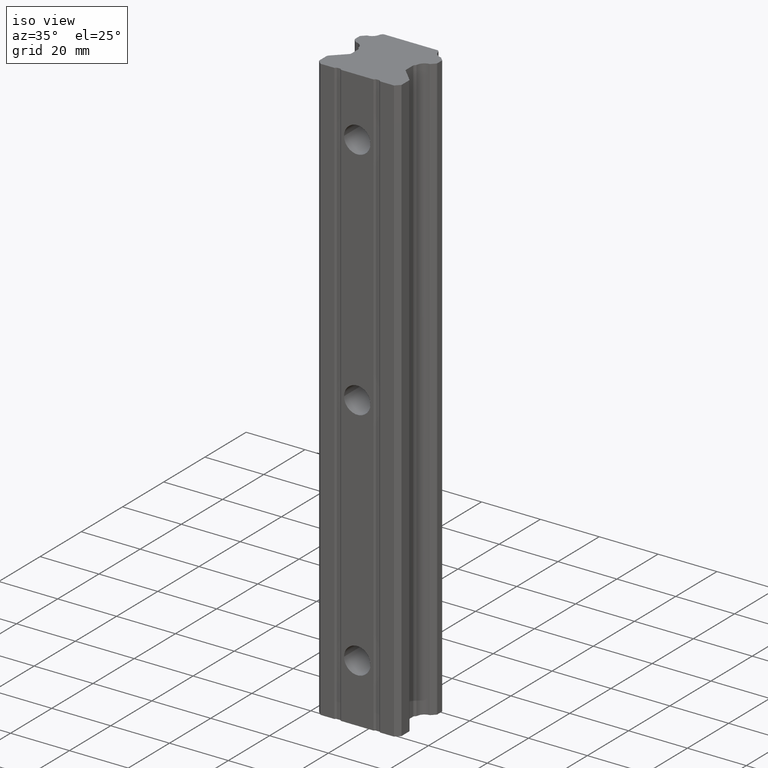
[diagram: clean part render]
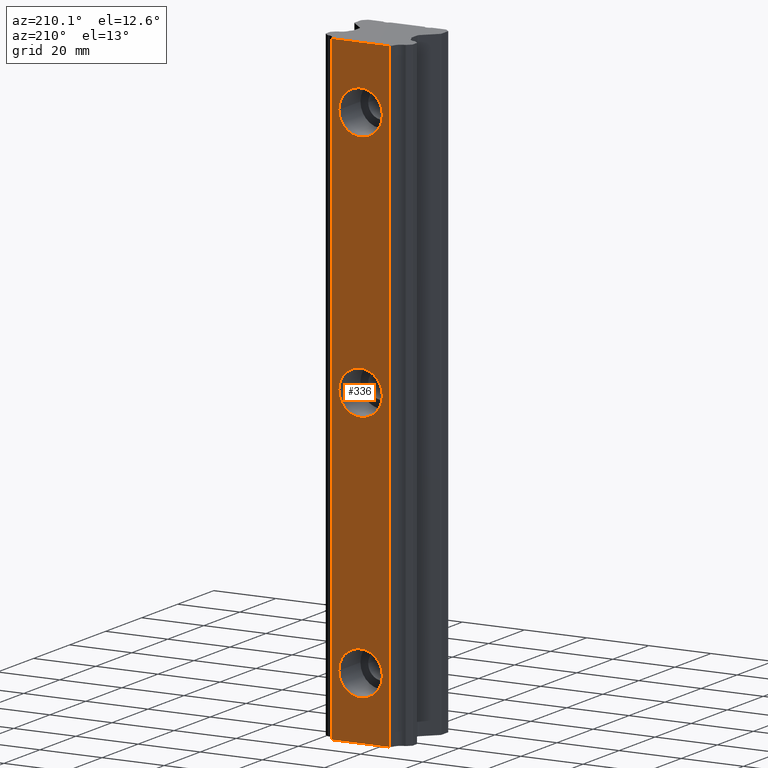
[diagram: tour spotlight — one face highlighted and labeled with its STEP entity id]
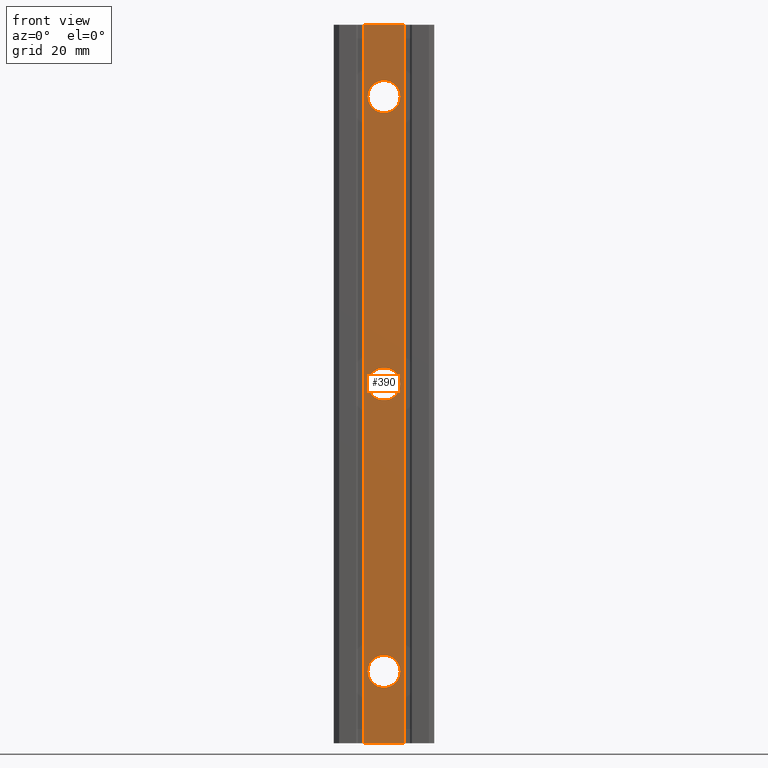
[diagram: tour spotlight — one face highlighted and labeled with its STEP entity id]
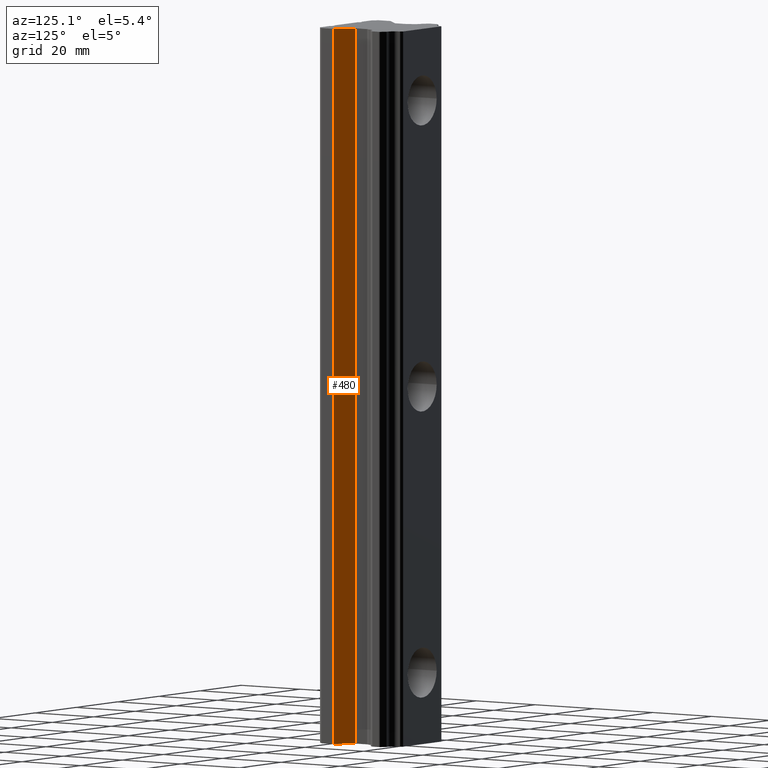
[diagram: tour spotlight — one face highlighted and labeled with its STEP entity id]
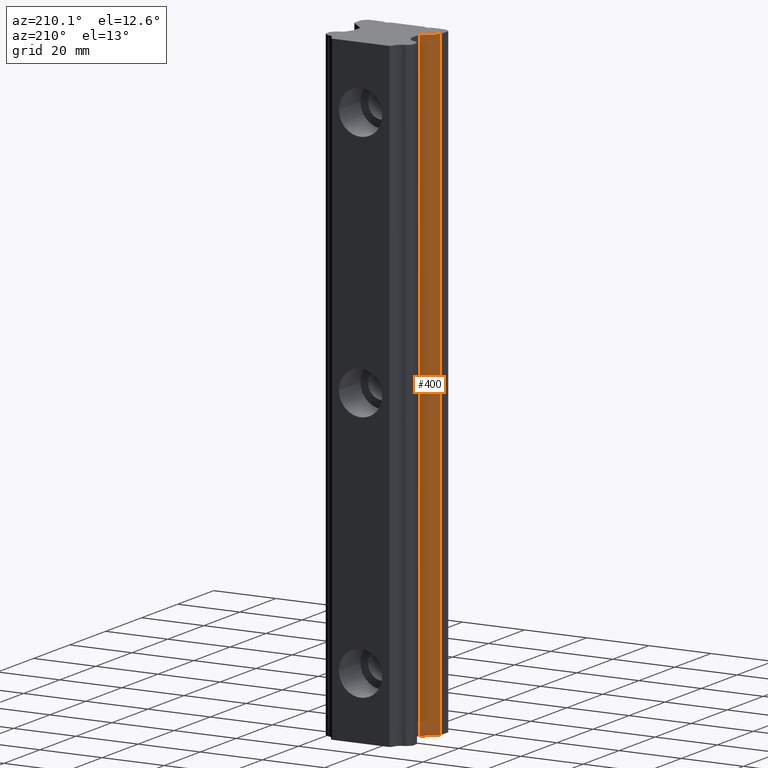
[diagram: tour spotlight — one face highlighted and labeled with its STEP entity id]
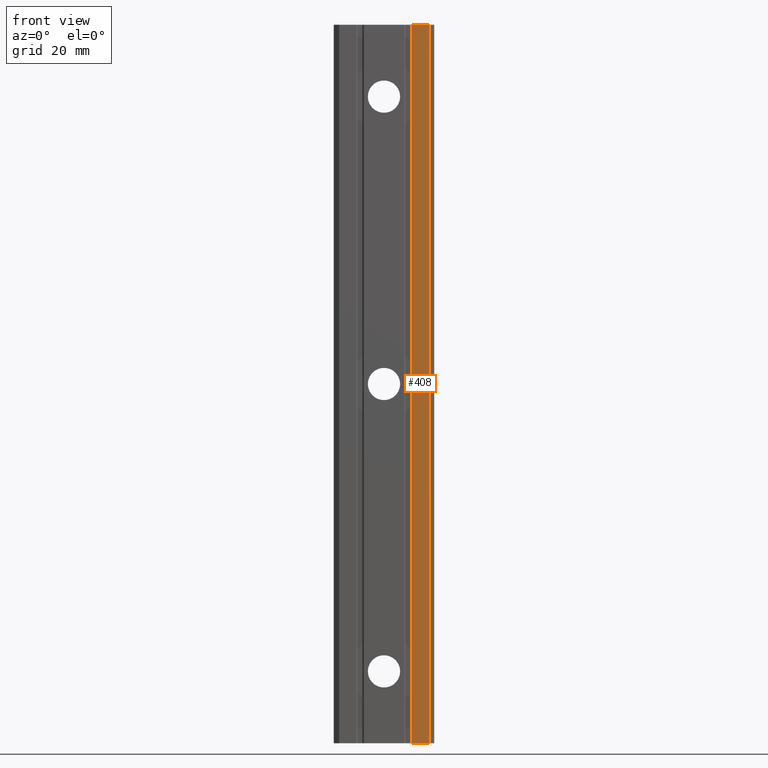
[diagram: tour spotlight — one face highlighted and labeled with its STEP entity id]
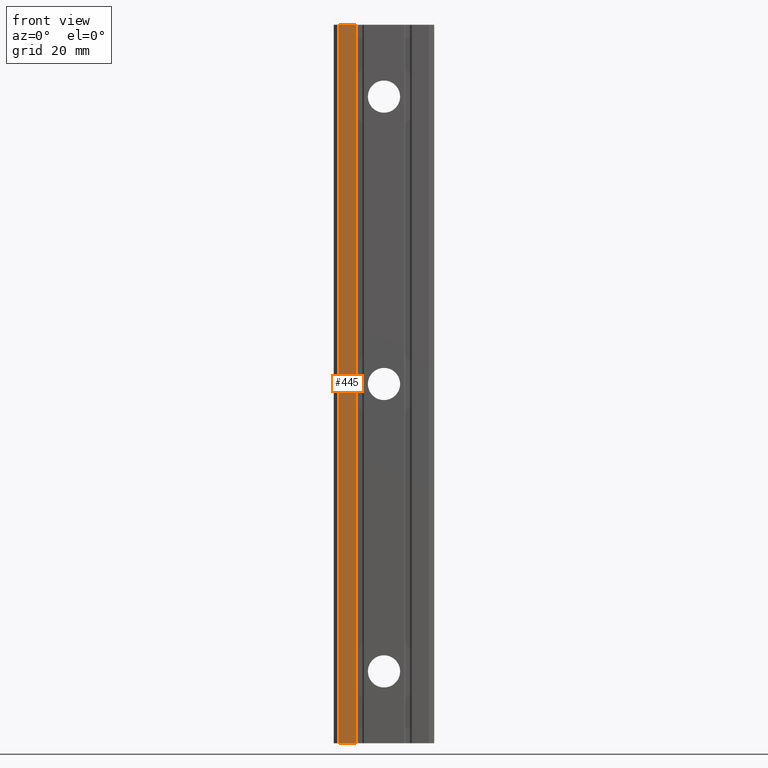
[diagram: tour spotlight — one face highlighted and labeled with its STEP entity id]
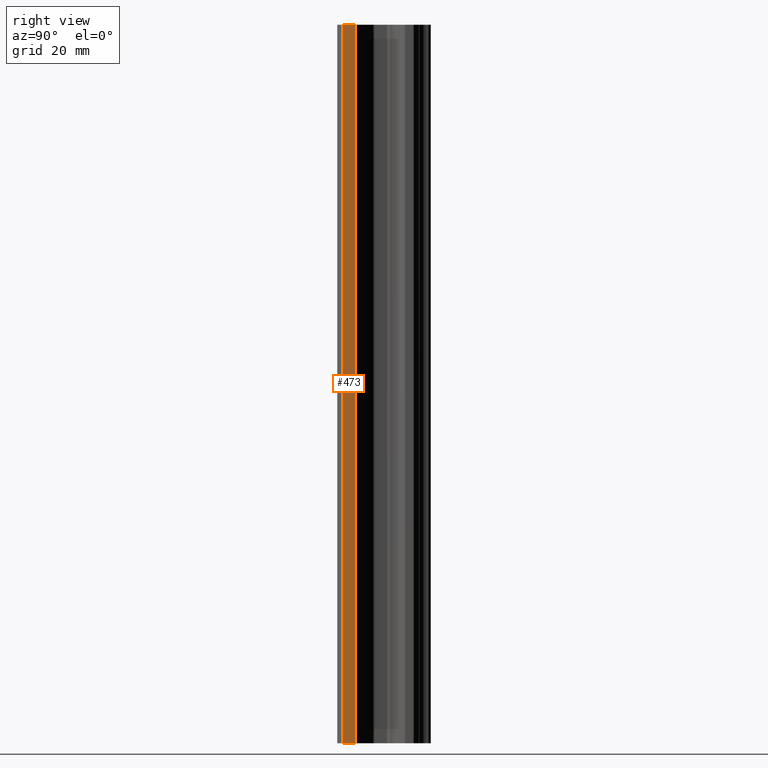
[diagram: tour spotlight — one face highlighted and labeled with its STEP entity id]
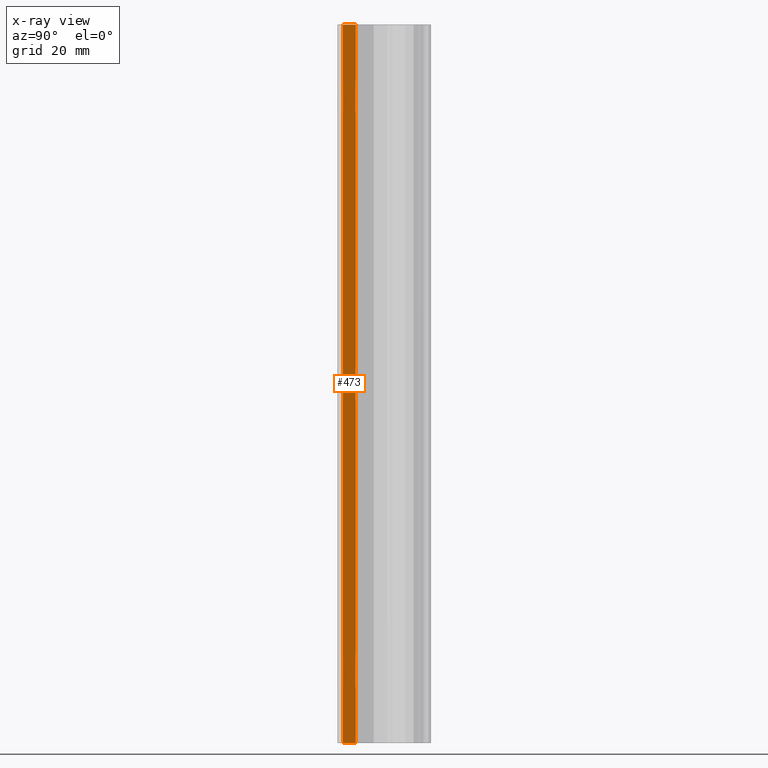
[diagram: x-ray of the same camera — body ghosted, this tour face saturated]
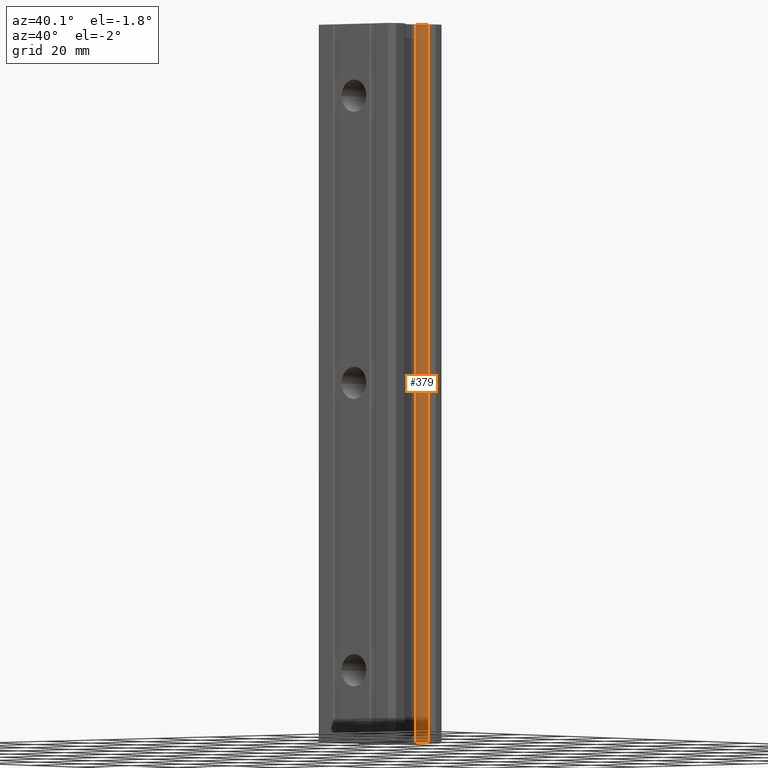
[diagram: tour spotlight — one face highlighted and labeled with its STEP entity id]
A machine part: a face-by-face anatomy tour. The part has 67 B-rep faces; the first image is the clean iso view, then the 8 largest visible faces are spotlighted one at a time (largest first), each with its STEP entity span.

Face 1 — auxiliary view, entity #336. In plain terms, the highlighted planar face has unit normal (-0, 1, 0).
Definition (entity closure, byte-faithful):
#92 = VERTEX_POINT ( 'NONE', #623 ) ;
#93 = VERTEX_POINT ( 'NONE', #622 ) ;
#96 = EDGE_CURVE ( 'NONE', #93, #92, #621, .T. ) ;
#220 = EDGE_CURVE ( 'NONE', #222, #225, #881, .T. ) ;
#222 = VERTEX_POINT ( 'NONE', #876 ) ;
#225 = VERTEX_POINT ( 'NONE', #938 ) ;
#243 = VERTEX_POINT ( 'NONE', #961 ) ;
#245 = VERTEX_POINT ( 'NONE', #960 ) ;
#248 = EDGE_CURVE ( 'NONE', #243, #245, #959, .T. ) ;
#316 = EDGE_CURVE ( 'NONE', #2016, #1923, #1030, .T. ) ;
#326 = EDGE_CURVE ( 'NONE', #92, #93, #1019, .T. ) ;
#332 = ORIENTED_EDGE ( 'NONE', *, *, #248, .T. ) ;
#335 = EDGE_LOOP ( 'NONE', ( #332, #369 ) ) ;
#336 = ADVANCED_FACE ( 'NONE', ( #1013, #1008, #1007, #1006 ), #1005, .T. ) ;
#337 = EDGE_CURVE ( 'NONE', #245, #243, #1064, .T. ) ;
#343 = EDGE_CURVE ( 'NONE', #225, #222, #1059, .T. ) ;
#347 = ORIENTED_EDGE ( 'NONE', *, *, #316, .T. ) ;
#348 = ORIENTED_EDGE ( 'NONE', *, *, #1976, .T. ) ;
#349 = ORIENTED_EDGE ( 'NONE', *, *, #1984, .T. ) ;
#350 = ORIENTED_EDGE ( 'NONE', *, *, #2028, .T. ) ;
#351 = EDGE_LOOP ( 'NONE', ( #353, #354 ) ) ;
#352 = EDGE_LOOP ( 'NONE', ( #350, #347, #348, #349 ) ) ;
#353 = ORIENTED_EDGE ( 'NONE', *, *, #96, .T. ) ;
#354 = ORIENTED_EDGE ( 'NONE', *, *, #326, .T. ) ;
#355 = ORIENTED_EDGE ( 'NONE', *, *, #343, .T. ) ;
#356 = EDGE_LOOP ( 'NONE', ( #357, #355 ) ) ;
#357 = ORIENTED_EDGE ( 'NONE', *, *, #220, .T. ) ;
#369 = ORIENTED_EDGE ( 'NONE', *, *, #337, .T. ) ;
#621 = CIRCLE ( 'NONE', #684, 7.000000000000000000 ) ;
#622 = CARTESIAN_POINT ( 'NONE',  ( -7.000000000000000000, -8.598904206424001400E-014, 80.00000000000000000 ) ) ;
#623 = CARTESIAN_POINT ( 'NONE',  ( 7.000000000000000000, 8.598904206424001400E-014, 80.00000000000000000 ) ) ;
#681 = DIRECTION ( 'NONE',  ( -1.000000000000000000, -1.228414886632000200E-014, 0.0000000000000000000 ) ) ;
#682 = DIRECTION ( 'NONE',  ( 1.228414886632000000E-014, -1.000000000000000000, 0.0000000000000000000 ) ) ;
#683 = CARTESIAN_POINT ( 'NONE',  ( 0.0000000000000000000, 0.0000000000000000000, 80.00000000000000000 ) ) ;
#684 = AXIS2_PLACEMENT_3D ( 'NONE', #683, #682, #681 ) ;
#876 = CARTESIAN_POINT ( 'NONE',  ( -7.000000000000000000, -8.598904206424001400E-014, 0.0000000000000000000 ) ) ;
#877 = DIRECTION ( 'NONE',  ( -1.000000000000000000, -1.228414886632000200E-014, 0.0000000000000000000 ) ) ;
#878 = DIRECTION ( 'NONE',  ( 1.228414886632000000E-014, -1.000000000000000000, 0.0000000000000000000 ) ) ;
#879 = CARTESIAN_POINT ( 'NONE',  ( 0.0000000000000000000, 0.0000000000000000000, 0.0000000000000000000 ) ) ;
#880 = AXIS2_PLACEMENT_3D ( 'NONE', #879, #878, #877 ) ;
#881 = CIRCLE ( 'NONE', #880, 7.000000000000000000 ) ;
#938 = CARTESIAN_POINT ( 'NONE',  ( 7.000000000000000000, 8.598904206424001400E-014, 8.572527594031473200E-016 ) ) ;
#955 = DIRECTION ( 'NONE',  ( -1.000000000000000000, -1.228414886632000200E-014, 0.0000000000000000000 ) ) ;
#956 = DIRECTION ( 'NONE',  ( 1.228414886632000000E-014, -1.000000000000000000, 0.0000000000000000000 ) ) ;
#957 = CARTESIAN_POINT ( 'NONE',  ( 0.0000000000000000000, 0.0000000000000000000, -80.00000000000000000 ) ) ;
#958 = AXIS2_PLACEMENT_3D ( 'NONE', #957, #956, #955 ) ;
#959 = CIRCLE ( 'NONE', #958, 7.000000000000000000 ) ;
#960 = CARTESIAN_POINT ( 'NONE',  ( 7.000000000000000000, 8.598904206424001400E-014, -80.00000000000000000 ) ) ;
#961 = CARTESIAN_POINT ( 'NONE',  ( -7.000000000000000000, -8.598904206424001400E-014, -80.00000000000000000 ) ) ;
#1001 = DIRECTION ( 'NONE',  ( -1.000000000000000000, -1.228414886632000000E-014, 0.0000000000000000000 ) ) ;
#1002 = DIRECTION ( 'NONE',  ( -1.228414886632000000E-014, 1.000000000000000000, 0.0000000000000000000 ) ) ;
#1003 = CARTESIAN_POINT ( 'NONE',  ( 9.255830520887002400, 1.137000000000000100E-013, -100.0000000000000000 ) ) ;
#1004 = AXIS2_PLACEMENT_3D ( 'NONE', #1003, #1002, #1001 ) ;
#1005 = PLANE ( 'NONE',  #1004 ) ;
#1006 = FACE_OUTER_BOUND ( 'NONE', #352, .T. ) ;
#1007 = FACE_BOUND ( 'NONE', #351, .T. ) ;
#1008 = FACE_BOUND ( 'NONE', #356, .T. ) ;
#1013 = FACE_BOUND ( 'NONE', #335, .T. ) ;
#1016 = DIRECTION ( 'NONE',  ( -1.000000000000000000, -1.228414886632000200E-014, 0.0000000000000000000 ) ) ;
#1017 = DIRECTION ( 'NONE',  ( 1.228414886632000000E-014, -1.000000000000000000, 0.0000000000000000000 ) ) ;
#1018 = AXIS2_PLACEMENT_3D ( 'NONE', #1025, #1017, #1016 ) ;
#1019 = CIRCLE ( 'NONE', #1018, 7.000000000000000000 ) ;
#1025 = CARTESIAN_POINT ( 'NONE',  ( 0.0000000000000000000, 0.0000000000000000000, 80.00000000000000000 ) ) ;
#1027 = DIRECTION ( 'NONE',  ( -1.000000000000000000, -1.228414886632000000E-014, 0.0000000000000000000 ) ) ;
#1028 = VECTOR ( 'NONE', #1027, 1000.000000000000000 ) ;
#1029 = CARTESIAN_POINT ( 'NONE',  ( 9.255830520887002400, 1.137000000000000100E-013, -100.0000000000000000 ) ) ;
#1030 = LINE ( 'NONE', #1029, #1028 ) ;
#1055 = DIRECTION ( 'NONE',  ( -1.000000000000000000, -1.228414886632000200E-014, 0.0000000000000000000 ) ) ;
#1056 = DIRECTION ( 'NONE',  ( 1.228414886632000000E-014, -1.000000000000000000, 0.0000000000000000000 ) ) ;
#1057 = CARTESIAN_POINT ( 'NONE',  ( 0.0000000000000000000, 0.0000000000000000000, 0.0000000000000000000 ) ) ;
#1058 = AXIS2_PLACEMENT_3D ( 'NONE', #1057, #1056, #1055 ) ;
#1059 = CIRCLE ( 'NONE', #1058, 7.000000000000000000 ) ;
#1060 = DIRECTION ( 'NONE',  ( -1.000000000000000000, -1.228414886632000200E-014, 0.0000000000000000000 ) ) ;
#1061 = DIRECTION ( 'NONE',  ( 1.228414886632000000E-014, -1.000000000000000000, 0.0000000000000000000 ) ) ;
#1062 = CARTESIAN_POINT ( 'NONE',  ( 0.0000000000000000000, 0.0000000000000000000, -80.00000000000000000 ) ) ;
#1063 = AXIS2_PLACEMENT_3D ( 'NONE', #1062, #1061, #1060 ) ;
#1064 = CIRCLE ( 'NONE', #1063, 7.000000000000000000 ) ;
#1288 = DIRECTION ( 'NONE',  ( 0.0000000000000000000, 0.0000000000000000000, 1.000000000000000000 ) ) ;
#1289 = VECTOR ( 'NONE', #1288, 1000.000000000000000 ) ;
#1290 = CARTESIAN_POINT ( 'NONE',  ( -9.255830520887002400, -1.137000000000082400E-013, -100.0000000000000000 ) ) ;
#1291 = LINE ( 'NONE', #1290, #1289 ) ;
#1292 = CARTESIAN_POINT ( 'NONE',  ( -9.255830520886904700, -3.790183202629287200E-014, 100.0000000000000000 ) ) ;
#1320 = CARTESIAN_POINT ( 'NONE',  ( -9.255830520886775000, 1.136945039211371200E-013, -100.0000000000000000 ) ) ;
#1339 = DIRECTION ( 'NONE',  ( 1.000000000000000000, 1.228414886632000000E-014, 0.0000000000000000000 ) ) ;
#1340 = VECTOR ( 'NONE', #1339, 1000.000000000000000 ) ;
#1341 = CARTESIAN_POINT ( 'NONE',  ( 9.255830520887002400, 1.137000000000000100E-013, 100.0000000000000000 ) ) ;
#1342 = LINE ( 'NONE', #1341, #1340 ) ;
#1343 = CARTESIAN_POINT ( 'NONE',  ( 9.255830520886851400, -3.790926987523308900E-014, 100.0000000000000000 ) ) ;
#1354 = CARTESIAN_POINT ( 'NONE',  ( 9.255830520887002400, 1.137000000000000100E-013, -100.0000000000000000 ) ) ;
#1355 = LINE ( 'NONE', #1354, #1415 ) ;
#1366 = CARTESIAN_POINT ( 'NONE',  ( 9.255830520886927800, 1.138814195175042600E-013, -100.0000000000000000 ) ) ;
#1414 = DIRECTION ( 'NONE',  ( 0.0000000000000000000, 0.0000000000000000000, -1.000000000000000000 ) ) ;
#1415 = VECTOR ( 'NONE', #1414, 1000.000000000000000 ) ;
#1923 = VERTEX_POINT ( 'NONE', #1320 ) ;
#1972 = VERTEX_POINT ( 'NONE', #1292 ) ;
#1976 = EDGE_CURVE ( 'NONE', #1923, #1972, #1291, .T. ) ;
#1982 = VERTEX_POINT ( 'NONE', #1343 ) ;
#1984 = EDGE_CURVE ( 'NONE', #1972, #1982, #1342, .T. ) ;
#2016 = VERTEX_POINT ( 'NONE', #1366 ) ;
#2028 = EDGE_CURVE ( 'NONE', #1982, #2016, #1355, .T. ) ;

Face 2 — front view, entity #390. In plain terms, the highlighted planar face has unit normal (0, -1, 0).
Definition (entity closure, byte-faithful):
#2 = VERTEX_POINT ( 'NONE', #2240 ) ;
#10 = VERTEX_POINT ( 'NONE', #2247 ) ;
#16 = EDGE_CURVE ( 'NONE', #2, #10, #512, .T. ) ;
#40 = VERTEX_POINT ( 'NONE', #527 ) ;
#71 = EDGE_CURVE ( 'NONE', #76, #127, #596, .T. ) ;
#76 = VERTEX_POINT ( 'NONE', #591 ) ;
#79 = EDGE_CURVE ( 'NONE', #148, #161, #590, .T. ) ;
#127 = VERTEX_POINT ( 'NONE', #743 ) ;
#128 = EDGE_CURVE ( 'NONE', #131, #130, #742, .T. ) ;
#130 = VERTEX_POINT ( 'NONE', #737 ) ;
#131 = VERTEX_POINT ( 'NONE', #736 ) ;
#148 = VERTEX_POINT ( 'NONE', #763 ) ;
#157 = EDGE_CURVE ( 'NONE', #161, #148, #755, .T. ) ;
#161 = VERTEX_POINT ( 'NONE', #810 ) ;
#266 = EDGE_CURVE ( 'NONE', #40, #275, #981, .T. ) ;
#275 = VERTEX_POINT ( 'NONE', #1031 ) ;
#390 = ADVANCED_FACE ( 'NONE', ( #1128, #1127, #1126, #1125 ), #1124, .T. ) ;
#391 = EDGE_LOOP ( 'NONE', ( #392, #393 ) ) ;
#392 = ORIENTED_EDGE ( 'NONE', *, *, #2229, .T. ) ;
#393 = ORIENTED_EDGE ( 'NONE', *, *, #71, .T. ) ;
#394 = EDGE_LOOP ( 'NONE', ( #395, #396 ) ) ;
#395 = ORIENTED_EDGE ( 'NONE', *, *, #79, .T. ) ;
#396 = ORIENTED_EDGE ( 'NONE', *, *, #157, .T. ) ;
#397 = EDGE_LOOP ( 'NONE', ( #414, #416 ) ) ;
#405 = ORIENTED_EDGE ( 'NONE', *, *, #16, .T. ) ;
#406 = ORIENTED_EDGE ( 'NONE', *, *, #407, .F. ) ;
#407 = EDGE_CURVE ( 'NONE', #40, #10, #1105, .T. ) ;
#411 = EDGE_CURVE ( 'NONE', #275, #2, #1161, .T. ) ;
#412 = ORIENTED_EDGE ( 'NONE', *, *, #266, .T. ) ;
#413 = ORIENTED_EDGE ( 'NONE', *, *, #411, .T. ) ;
#414 = ORIENTED_EDGE ( 'NONE', *, *, #2029, .T. ) ;
#415 = EDGE_LOOP ( 'NONE', ( #412, #413, #405, #406 ) ) ;
#416 = ORIENTED_EDGE ( 'NONE', *, *, #128, .T. ) ;
#509 = DIRECTION ( 'NONE',  ( 0.0000000000000000000, 0.0000000000000000000, 1.000000000000000000 ) ) ;
#510 = VECTOR ( 'NONE', #509, 1000.000000000000000 ) ;
#511 = CARTESIAN_POINT ( 'NONE',  ( 5.549999999999999800, -26.00000000000000400, -100.0000000000000000 ) ) ;
#512 = LINE ( 'NONE', #511, #510 ) ;
#527 = CARTESIAN_POINT ( 'NONE',  ( -5.549999999999876400, -25.99999999999987600, 100.0000000000000000 ) ) ;
#588 = CARTESIAN_POINT ( 'NONE',  ( 3.193878705243193200E-013, -25.99999999999994700, 80.00000000000000000 ) ) ;
#589 = AXIS2_PLACEMENT_3D ( 'NONE', #588, #651, #650 ) ;
#590 = CIRCLE ( 'NONE', #589, 4.500000000000000900 ) ;
#591 = CARTESIAN_POINT ( 'NONE',  ( 4.500000000000319700, -25.99999999999989000, -80.00000000000000000 ) ) ;
#592 = DIRECTION ( 'NONE',  ( -1.000000000000000000, -1.233581138472395900E-014, 0.0000000000000000000 ) ) ;
#593 = DIRECTION ( 'NONE',  ( -1.228414886632000000E-014, 1.000000000000000000, 0.0000000000000000000 ) ) ;
#594 = CARTESIAN_POINT ( 'NONE',  ( 3.193878705243193200E-013, -25.99999999999994700, -80.00000000000000000 ) ) ;
#595 = AXIS2_PLACEMENT_3D ( 'NONE', #594, #593, #592 ) ;
#596 = CIRCLE ( 'NONE', #595, 4.500000000000000900 ) ;
#650 = DIRECTION ( 'NONE',  ( -1.000000000000000000, -1.233581138472395900E-014, 0.0000000000000000000 ) ) ;
#651 = DIRECTION ( 'NONE',  ( -1.228414886632000000E-014, 1.000000000000000000, 0.0000000000000000000 ) ) ;
#736 = CARTESIAN_POINT ( 'NONE',  ( 4.500000000000319700, -25.99999999999989000, 5.510910596163195100E-016 ) ) ;
#737 = CARTESIAN_POINT ( 'NONE',  ( -4.499999999999681100, -26.00000000000000400, 0.0000000000000000000 ) ) ;
#738 = DIRECTION ( 'NONE',  ( -1.000000000000000000, -1.233581138472395900E-014, 0.0000000000000000000 ) ) ;
#739 = DIRECTION ( 'NONE',  ( -1.228414886632000000E-014, 1.000000000000000000, 0.0000000000000000000 ) ) ;
#740 = CARTESIAN_POINT ( 'NONE',  ( 3.193878705243193200E-013, -25.99999999999994700, 0.0000000000000000000 ) ) ;
#741 = AXIS2_PLACEMENT_3D ( 'NONE', #740, #739, #738 ) ;
#742 = CIRCLE ( 'NONE', #741, 4.500000000000000900 ) ;
#743 = CARTESIAN_POINT ( 'NONE',  ( -4.499999999999681100, -26.00000000000000400, -80.00000000000000000 ) ) ;
#751 = DIRECTION ( 'NONE',  ( -1.000000000000000000, -1.233581138472395900E-014, 0.0000000000000000000 ) ) ;
#752 = DIRECTION ( 'NONE',  ( -1.228414886632000000E-014, 1.000000000000000000, 0.0000000000000000000 ) ) ;
#753 = CARTESIAN_POINT ( 'NONE',  ( 3.193878705243193200E-013, -25.99999999999994700, 80.00000000000000000 ) ) ;
#754 = AXIS2_PLACEMENT_3D ( 'NONE', #753, #752, #751 ) ;
#755 = CIRCLE ( 'NONE', #754, 4.500000000000000900 ) ;
#763 = CARTESIAN_POINT ( 'NONE',  ( -4.499999999999681100, -26.00000000000000400, 80.00000000000000000 ) ) ;
#810 = CARTESIAN_POINT ( 'NONE',  ( 4.500000000000319700, -25.99999999999989000, 80.00000000000000000 ) ) ;
#978 = DIRECTION ( 'NONE',  ( 0.0000000000000000000, 0.0000000000000000000, -1.000000000000000000 ) ) ;
#979 = VECTOR ( 'NONE', #978, 1000.000000000000000 ) ;
#980 = CARTESIAN_POINT ( 'NONE',  ( -5.549999999999999800, -26.00000000000000400, -100.0000000000000000 ) ) ;
#981 = LINE ( 'NONE', #980, #979 ) ;
#1031 = CARTESIAN_POINT ( 'NONE',  ( -5.549999999999876400, -25.99999999999987600, -100.0000000000000000 ) ) ;
#1102 = DIRECTION ( 'NONE',  ( 1.000000000000000000, 0.0000000000000000000, 0.0000000000000000000 ) ) ;
#1103 = VECTOR ( 'NONE', #1102, 1000.000000000000000 ) ;
#1104 = CARTESIAN_POINT ( 'NONE',  ( 0.0000000000000000000, -26.00000000000000400, 100.0000000000000000 ) ) ;
#1105 = LINE ( 'NONE', #1104, #1103 ) ;
#1120 = DIRECTION ( 'NONE',  ( 0.0000000000000000000, 0.0000000000000000000, -1.000000000000000000 ) ) ;
#1121 = DIRECTION ( 'NONE',  ( 0.0000000000000000000, -1.000000000000000000, 0.0000000000000000000 ) ) ;
#1122 = CARTESIAN_POINT ( 'NONE',  ( -5.549999999999999800, -26.00000000000000400, -100.0000000000000000 ) ) ;
#1123 = AXIS2_PLACEMENT_3D ( 'NONE', #1122, #1121, #1120 ) ;
#1124 = PLANE ( 'NONE',  #1123 ) ;
#1125 = FACE_OUTER_BOUND ( 'NONE', #415, .T. ) ;
#1126 = FACE_BOUND ( 'NONE', #397, .T. ) ;
#1127 = FACE_BOUND ( 'NONE', #394, .T. ) ;
#1128 = FACE_BOUND ( 'NONE', #391, .T. ) ;
#1158 = DIRECTION ( 'NONE',  ( 1.000000000000000000, 0.0000000000000000000, 0.0000000000000000000 ) ) ;
#1159 = VECTOR ( 'NONE', #1158, 1000.000000000000000 ) ;
#1160 = CARTESIAN_POINT ( 'NONE',  ( 0.0000000000000000000, -26.00000000000000400, -100.0000000000000000 ) ) ;
#1161 = LINE ( 'NONE', #1160, #1159 ) ;
#1409 = DIRECTION ( 'NONE',  ( -1.000000000000000000, -1.233581138472395900E-014, 0.0000000000000000000 ) ) ;
#1410 = DIRECTION ( 'NONE',  ( -1.228414886632000000E-014, 1.000000000000000000, 0.0000000000000000000 ) ) ;
#1411 = CARTESIAN_POINT ( 'NONE',  ( 3.193878705243193200E-013, -25.99999999999994700, 0.0000000000000000000 ) ) ;
#1412 = AXIS2_PLACEMENT_3D ( 'NONE', #1411, #1410, #1409 ) ;
#1413 = CIRCLE ( 'NONE', #1412, 4.500000000000000900 ) ;
#1782 = DIRECTION ( 'NONE',  ( -1.000000000000000000, -1.233581138472395900E-014, 0.0000000000000000000 ) ) ;
#1783 = DIRECTION ( 'NONE',  ( -1.228414886632000000E-014, 1.000000000000000000, 0.0000000000000000000 ) ) ;
#1784 = CARTESIAN_POINT ( 'NONE',  ( 3.193878705243193200E-013, -25.99999999999994700, -80.00000000000000000 ) ) ;
#1785 = AXIS2_PLACEMENT_3D ( 'NONE', #1784, #1783, #1782 ) ;
#1786 = CIRCLE ( 'NONE', #1785, 4.500000000000000900 ) ;
#2029 = EDGE_CURVE ( 'NONE', #130, #131, #1413, .T. ) ;
#2229 = EDGE_CURVE ( 'NONE', #127, #76, #1786, .T. ) ;
#2240 = CARTESIAN_POINT ( 'NONE',  ( 5.550000000000000700, -26.00000000000000400, -100.0000000000000000 ) ) ;
#2247 = CARTESIAN_POINT ( 'NONE',  ( 5.550000000000000700, -26.00000000000000400, 100.0000000000000000 ) ) ;

Face 3 — auxiliary view, entity #480. In plain terms, the highlighted planar face has unit normal (0.7071, 0.7071, 0).
Definition (entity closure, byte-faithful):
#6 = VERTEX_POINT ( 'NONE', #2248 ) ;
#31 = EDGE_CURVE ( 'NONE', #55, #48, #539, .T. ) ;
#48 = VERTEX_POINT ( 'NONE', #575 ) ;
#55 = VERTEX_POINT ( 'NONE', #562 ) ;
#461 = EDGE_CURVE ( 'NONE', #6, #55, #1211, .T. ) ;
#462 = ORIENTED_EDGE ( 'NONE', *, *, #31, .T. ) ;
#463 = ORIENTED_EDGE ( 'NONE', *, *, #464, .F. ) ;
#464 = EDGE_CURVE ( 'NONE', #1946, #48, #1207, .T. ) ;
#480 = ADVANCED_FACE ( 'NONE', ( #1239 ), #1238, .T. ) ;
#481 = EDGE_LOOP ( 'NONE', ( #482, #483, #462, #463 ) ) ;
#482 = ORIENTED_EDGE ( 'NONE', *, *, #1981, .T. ) ;
#483 = ORIENTED_EDGE ( 'NONE', *, *, #461, .T. ) ;
#536 = DIRECTION ( 'NONE',  ( 0.0000000000000000000, 0.0000000000000000000, 1.000000000000000000 ) ) ;
#537 = VECTOR ( 'NONE', #536, 1000.000000000000000 ) ;
#538 = CARTESIAN_POINT ( 'NONE',  ( 9.534314575050199600, -16.09321492031079600, -100.0000000000000000 ) ) ;
#539 = LINE ( 'NONE', #538, #537 ) ;
#562 = CARTESIAN_POINT ( 'NONE',  ( 9.534314575050316900, -16.09321492031011400, -100.0000000000000000 ) ) ;
#575 = CARTESIAN_POINT ( 'NONE',  ( 9.534314575050316900, -16.09321492031011400, 100.0000000000000000 ) ) ;
#1204 = DIRECTION ( 'NONE',  ( -0.7071067811864639700, 0.7071067811866310600, 0.0000000000000000000 ) ) ;
#1205 = VECTOR ( 'NONE', #1204, 1000.000000000000100 ) ;
#1206 = CARTESIAN_POINT ( 'NONE',  ( 13.76568542495000000, -20.32458577021000000, 100.0000000000000000 ) ) ;
#1207 = LINE ( 'NONE', #1206, #1205 ) ;
#1208 = DIRECTION ( 'NONE',  ( -0.7071067811864639700, 0.7071067811866310600, 0.0000000000000000000 ) ) ;
#1209 = VECTOR ( 'NONE', #1208, 1000.000000000000100 ) ;
#1210 = CARTESIAN_POINT ( 'NONE',  ( 13.76568542495000000, -20.32458577021000000, -100.0000000000000000 ) ) ;
#1211 = LINE ( 'NONE', #1210, #1209 ) ;
#1234 = DIRECTION ( 'NONE',  ( -0.7071067811865975300, 0.7071067811864976100, 0.0000000000000000000 ) ) ;
#1235 = DIRECTION ( 'NONE',  ( 0.7071067811864976100, 0.7071067811865975300, 0.0000000000000000000 ) ) ;
#1236 = CARTESIAN_POINT ( 'NONE',  ( 13.76568542495000000, -20.32458577021000000, -100.0000000000000000 ) ) ;
#1237 = AXIS2_PLACEMENT_3D ( 'NONE', #1236, #1235, #1234 ) ;
#1238 = PLANE ( 'NONE',  #1237 ) ;
#1239 = FACE_OUTER_BOUND ( 'NONE', #481, .T. ) ;
#1319 = CARTESIAN_POINT ( 'NONE',  ( 13.76568542495003400, -20.32458577021003500, 100.0000000000000000 ) ) ;
#1344 = DIRECTION ( 'NONE',  ( 0.0000000000000000000, 0.0000000000000000000, -1.000000000000000000 ) ) ;
#1345 = VECTOR ( 'NONE', #1344, 1000.000000000000000 ) ;
#1346 = CARTESIAN_POINT ( 'NONE',  ( 13.76568542495000000, -20.32458577021000000, -100.0000000000000000 ) ) ;
#1347 = LINE ( 'NONE', #1346, #1345 ) ;
#1946 = VERTEX_POINT ( 'NONE', #1319 ) ;
#1981 = EDGE_CURVE ( 'NONE', #1946, #6, #1347, .T. ) ;
#2248 = CARTESIAN_POINT ( 'NONE',  ( 13.76568542495003400, -20.32458577021003500, -100.0000000000000000 ) ) ;

Face 4 — auxiliary view, entity #400. In plain terms, the highlighted planar face has unit normal (-0.7071, 0.7071, 0).
Definition (entity closure, byte-faithful):
#110 = EDGE_CURVE ( 'NONE', #164, #111, #656, .T. ) ;
#111 = VERTEX_POINT ( 'NONE', #710 ) ;
#158 = VERTEX_POINT ( 'NONE', #756 ) ;
#159 = VERTEX_POINT ( 'NONE', #750 ) ;
#162 = EDGE_CURVE ( 'NONE', #158, #159, #805, .T. ) ;
#164 = VERTEX_POINT ( 'NONE', #797 ) ;
#384 = EDGE_LOOP ( 'NONE', ( #401, #402, #404, #421 ) ) ;
#400 = ADVANCED_FACE ( 'NONE', ( #1115 ), #1114, .T. ) ;
#401 = ORIENTED_EDGE ( 'NONE', *, *, #110, .T. ) ;
#402 = ORIENTED_EDGE ( 'NONE', *, *, #403, .T. ) ;
#403 = EDGE_CURVE ( 'NONE', #111, #158, #1109, .T. ) ;
#404 = ORIENTED_EDGE ( 'NONE', *, *, #162, .T. ) ;
#421 = ORIENTED_EDGE ( 'NONE', *, *, #422, .F. ) ;
#422 = EDGE_CURVE ( 'NONE', #164, #159, #1153, .T. ) ;
#656 = LINE ( 'NONE', #713, #712 ) ;
#710 = CARTESIAN_POINT ( 'NONE',  ( -9.534314575050718300, -16.09321492030972000, -100.0000000000000000 ) ) ;
#711 = DIRECTION ( 'NONE',  ( 0.0000000000000000000, 0.0000000000000000000, -1.000000000000000000 ) ) ;
#712 = VECTOR ( 'NONE', #711, 1000.000000000000000 ) ;
#713 = CARTESIAN_POINT ( 'NONE',  ( -9.534314575051000800, -16.09321492031000000, -100.0000000000000000 ) ) ;
#750 = CARTESIAN_POINT ( 'NONE',  ( -13.76568542495043300, -20.32458577020963000, 100.0000000000000000 ) ) ;
#756 = CARTESIAN_POINT ( 'NONE',  ( -13.76568542495043300, -20.32458577020963000, -100.0000000000000000 ) ) ;
#797 = CARTESIAN_POINT ( 'NONE',  ( -9.534314575050718300, -16.09321492030972000, 100.0000000000000000 ) ) ;
#802 = DIRECTION ( 'NONE',  ( 0.0000000000000000000, 0.0000000000000000000, 1.000000000000000000 ) ) ;
#803 = VECTOR ( 'NONE', #802, 1000.000000000000000 ) ;
#804 = CARTESIAN_POINT ( 'NONE',  ( -13.76568542495079900, -20.32458577020920000, -100.0000000000000000 ) ) ;
#805 = LINE ( 'NONE', #804, #803 ) ;
#1106 = DIRECTION ( 'NONE',  ( -0.7071067811864639700, -0.7071067811866310600, 0.0000000000000000000 ) ) ;
#1107 = VECTOR ( 'NONE', #1106, 1000.000000000000100 ) ;
#1108 = CARTESIAN_POINT ( 'NONE',  ( -9.534314575051000800, -16.09321492031000000, -100.0000000000000000 ) ) ;
#1109 = LINE ( 'NONE', #1108, #1107 ) ;
#1110 = DIRECTION ( 'NONE',  ( -0.7071067811865975300, -0.7071067811864976100, 0.0000000000000000000 ) ) ;
#1111 = DIRECTION ( 'NONE',  ( -0.7071067811864976100, 0.7071067811865975300, 0.0000000000000000000 ) ) ;
#1112 = CARTESIAN_POINT ( 'NONE',  ( -9.534314575051000800, -16.09321492031000000, -100.0000000000000000 ) ) ;
#1113 = AXIS2_PLACEMENT_3D ( 'NONE', #1112, #1111, #1110 ) ;
#1114 = PLANE ( 'NONE',  #1113 ) ;
#1115 = FACE_OUTER_BOUND ( 'NONE', #384, .T. ) ;
#1150 = DIRECTION ( 'NONE',  ( -0.7071067811864639700, -0.7071067811866310600, 0.0000000000000000000 ) ) ;
#1151 = VECTOR ( 'NONE', #1150, 1000.000000000000100 ) ;
#1152 = CARTESIAN_POINT ( 'NONE',  ( -9.534314575051000800, -16.09321492031000000, 100.0000000000000000 ) ) ;
#1153 = LINE ( 'NONE', #1152, #1151 ) ;

Face 5 — front view, entity #408. In plain terms, the highlighted planar face has unit normal (0, -1, 0).
Definition (entity closure, byte-faithful):
#32 = VERTEX_POINT ( 'NONE', #535 ) ;
#36 = VERTEX_POINT ( 'NONE', #529 ) ;
#57 = EDGE_CURVE ( 'NONE', #36, #32, #561, .T. ) ;
#360 = EDGE_CURVE ( 'NONE', #32, #363, #1047, .T. ) ;
#363 = VERTEX_POINT ( 'NONE', #1038 ) ;
#367 = ORIENTED_EDGE ( 'NONE', *, *, #484, .F. ) ;
#380 = ORIENTED_EDGE ( 'NONE', *, *, #360, .T. ) ;
#408 = ADVANCED_FACE ( 'NONE', ( #1101 ), #1100, .T. ) ;
#409 = ORIENTED_EDGE ( 'NONE', *, *, #57, .T. ) ;
#410 = EDGE_LOOP ( 'NONE', ( #409, #380, #367, #486 ) ) ;
#484 = EDGE_CURVE ( 'NONE', #485, #363, #1233, .T. ) ;
#485 = VERTEX_POINT ( 'NONE', #1229 ) ;
#486 = ORIENTED_EDGE ( 'NONE', *, *, #487, .F. ) ;
#487 = EDGE_CURVE ( 'NONE', #36, #485, #1227, .T. ) ;
#529 = CARTESIAN_POINT ( 'NONE',  ( 7.749999999999987600, -26.00000000000001400, 100.0000000000000000 ) ) ;
#535 = CARTESIAN_POINT ( 'NONE',  ( 7.749999999999987600, -26.00000000000001400, -100.0000000000000000 ) ) ;
#558 = DIRECTION ( 'NONE',  ( 0.0000000000000000000, 0.0000000000000000000, -1.000000000000000000 ) ) ;
#559 = VECTOR ( 'NONE', #558, 1000.000000000000000 ) ;
#560 = CARTESIAN_POINT ( 'NONE',  ( 7.750000000000000000, -26.00000000000000400, -100.0000000000000000 ) ) ;
#561 = LINE ( 'NONE', #560, #559 ) ;
#719 = CARTESIAN_POINT ( 'NONE',  ( 0.0000000000000000000, -26.00000000000000400, 100.0000000000000000 ) ) ;
#1038 = CARTESIAN_POINT ( 'NONE',  ( 12.50000000000000000, -26.00000000000000400, -100.0000000000000000 ) ) ;
#1044 = DIRECTION ( 'NONE',  ( 1.000000000000000000, 0.0000000000000000000, 0.0000000000000000000 ) ) ;
#1045 = VECTOR ( 'NONE', #1044, 1000.000000000000000 ) ;
#1046 = CARTESIAN_POINT ( 'NONE',  ( 0.0000000000000000000, -26.00000000000000400, -100.0000000000000000 ) ) ;
#1047 = LINE ( 'NONE', #1046, #1045 ) ;
#1096 = DIRECTION ( 'NONE',  ( 0.0000000000000000000, 0.0000000000000000000, -1.000000000000000000 ) ) ;
#1097 = DIRECTION ( 'NONE',  ( 0.0000000000000000000, -1.000000000000000000, 0.0000000000000000000 ) ) ;
#1098 = CARTESIAN_POINT ( 'NONE',  ( 7.750000000000000000, -26.00000000000000400, -100.0000000000000000 ) ) ;
#1099 = AXIS2_PLACEMENT_3D ( 'NONE', #1098, #1097, #1096 ) ;
#1100 = PLANE ( 'NONE',  #1099 ) ;
#1101 = FACE_OUTER_BOUND ( 'NONE', #410, .T. ) ;
#1227 = LINE ( 'NONE', #719, #2249 ) ;
#1229 = CARTESIAN_POINT ( 'NONE',  ( 12.50000000000000000, -26.00000000000000400, 100.0000000000000000 ) ) ;
#1230 = DIRECTION ( 'NONE',  ( 0.0000000000000000000, 0.0000000000000000000, -1.000000000000000000 ) ) ;
#1231 = VECTOR ( 'NONE', #1230, 1000.000000000000000 ) ;
#1232 = CARTESIAN_POINT ( 'NONE',  ( 12.50000000000000000, -26.00000000000000400, -100.0000000000000000 ) ) ;
#1233 = LINE ( 'NONE', #1232, #1231 ) ;
#2156 = DIRECTION ( 'NONE',  ( 1.000000000000000000, 0.0000000000000000000, 0.0000000000000000000 ) ) ;
#2249 = VECTOR ( 'NONE', #2156, 1000.000000000000000 ) ;

Face 6 — front view, entity #445. In plain terms, the highlighted planar face has unit normal (0, -1, 0).
Definition (entity closure, byte-faithful):
#252 = EDGE_CURVE ( 'NONE', #253, #254, #946, .T. ) ;
#253 = VERTEX_POINT ( 'NONE', #942 ) ;
#254 = VERTEX_POINT ( 'NONE', #941 ) ;
#385 = ORIENTED_EDGE ( 'NONE', *, *, #386, .T. ) ;
#386 = EDGE_CURVE ( 'NONE', #439, #253, #1069, .T. ) ;
#387 = ORIENTED_EDGE ( 'NONE', *, *, #252, .T. ) ;
#388 = ORIENTED_EDGE ( 'NONE', *, *, #389, .F. ) ;
#389 = EDGE_CURVE ( 'NONE', #442, #254, #1065, .T. ) ;
#439 = VERTEX_POINT ( 'NONE', #1182 ) ;
#441 = EDGE_CURVE ( 'NONE', #442, #439, #1181, .T. ) ;
#442 = VERTEX_POINT ( 'NONE', #1177 ) ;
#445 = ADVANCED_FACE ( 'NONE', ( #1172 ), #1171, .T. ) ;
#446 = EDGE_LOOP ( 'NONE', ( #447, #385, #387, #388 ) ) ;
#447 = ORIENTED_EDGE ( 'NONE', *, *, #441, .T. ) ;
#941 = CARTESIAN_POINT ( 'NONE',  ( -7.750000000000000900, -26.00000000000000400, 100.0000000000000000 ) ) ;
#942 = CARTESIAN_POINT ( 'NONE',  ( -7.750000000000000900, -26.00000000000000400, -100.0000000000000000 ) ) ;
#943 = DIRECTION ( 'NONE',  ( 0.0000000000000000000, 0.0000000000000000000, 1.000000000000000000 ) ) ;
#944 = VECTOR ( 'NONE', #943, 1000.000000000000000 ) ;
#945 = CARTESIAN_POINT ( 'NONE',  ( -7.750000000000000000, -26.00000000000000400, -100.0000000000000000 ) ) ;
#946 = LINE ( 'NONE', #945, #944 ) ;
#1065 = LINE ( 'NONE', #1131, #1130 ) ;
#1066 = DIRECTION ( 'NONE',  ( 1.000000000000000000, 0.0000000000000000000, 0.0000000000000000000 ) ) ;
#1067 = VECTOR ( 'NONE', #1066, 1000.000000000000000 ) ;
#1068 = CARTESIAN_POINT ( 'NONE',  ( 0.0000000000000000000, -26.00000000000000400, -100.0000000000000000 ) ) ;
#1069 = LINE ( 'NONE', #1068, #1067 ) ;
#1129 = DIRECTION ( 'NONE',  ( 1.000000000000000000, 0.0000000000000000000, 0.0000000000000000000 ) ) ;
#1130 = VECTOR ( 'NONE', #1129, 1000.000000000000000 ) ;
#1131 = CARTESIAN_POINT ( 'NONE',  ( 0.0000000000000000000, -26.00000000000000400, 100.0000000000000000 ) ) ;
#1167 = DIRECTION ( 'NONE',  ( 0.0000000000000000000, 0.0000000000000000000, -1.000000000000000000 ) ) ;
#1168 = DIRECTION ( 'NONE',  ( 0.0000000000000000000, -1.000000000000000000, 0.0000000000000000000 ) ) ;
#1169 = CARTESIAN_POINT ( 'NONE',  ( -12.50000000000000000, -26.00000000000000400, -100.0000000000000000 ) ) ;
#1170 = AXIS2_PLACEMENT_3D ( 'NONE', #1169, #1168, #1167 ) ;
#1171 = PLANE ( 'NONE',  #1170 ) ;
#1172 = FACE_OUTER_BOUND ( 'NONE', #446, .T. ) ;
#1177 = CARTESIAN_POINT ( 'NONE',  ( -12.50000000000000000, -26.00000000000000400, 100.0000000000000600 ) ) ;
#1178 = DIRECTION ( 'NONE',  ( 0.0000000000000000000, 0.0000000000000000000, -1.000000000000000000 ) ) ;
#1179 = VECTOR ( 'NONE', #1178, 1000.000000000000000 ) ;
#1180 = CARTESIAN_POINT ( 'NONE',  ( -12.50000000000000000, -26.00000000000000400, -100.0000000000000000 ) ) ;
#1181 = LINE ( 'NONE', #1180, #1179 ) ;
#1182 = CARTESIAN_POINT ( 'NONE',  ( -12.50000000000000000, -26.00000000000000400, -100.0000000000000000 ) ) ;

Face 7 — right view, entity #473. An x-ray twin of the same camera follows (body ghosted, this face saturated) — the face is partly hidden behind the body. In plain terms, the highlighted planar face has unit normal (1, 0, 0).
Definition (entity closure, byte-faithful):
#15 = EDGE_CURVE ( 'NONE', #268, #264, #516, .T. ) ;
#264 = VERTEX_POINT ( 'NONE', #982 ) ;
#268 = VERTEX_POINT ( 'NONE', #976 ) ;
#420 = EDGE_LOOP ( 'NONE', ( #474, #475, #477, #478 ) ) ;
#473 = ADVANCED_FACE ( 'NONE', ( #1253 ), #1252, .T. ) ;
#474 = ORIENTED_EDGE ( 'NONE', *, *, #495, .T. ) ;
#475 = ORIENTED_EDGE ( 'NONE', *, *, #476, .T. ) ;
#476 = EDGE_CURVE ( 'NONE', #493, #268, #1247, .T. ) ;
#477 = ORIENTED_EDGE ( 'NONE', *, *, #15, .T. ) ;
#478 = ORIENTED_EDGE ( 'NONE', *, *, #479, .F. ) ;
#479 = EDGE_CURVE ( 'NONE', #496, #264, #1243, .T. ) ;
#493 = VERTEX_POINT ( 'NONE', #1277 ) ;
#495 = EDGE_CURVE ( 'NONE', #496, #493, #1276, .T. ) ;
#496 = VERTEX_POINT ( 'NONE', #1272 ) ;
#513 = DIRECTION ( 'NONE',  ( 0.0000000000000000000, 0.0000000000000000000, 1.000000000000000000 ) ) ;
#514 = VECTOR ( 'NONE', #513, 1000.000000000000000 ) ;
#515 = CARTESIAN_POINT ( 'NONE',  ( 14.00000000000000000, -20.89027119516000000, -100.0000000000000000 ) ) ;
#516 = LINE ( 'NONE', #515, #514 ) ;
#976 = CARTESIAN_POINT ( 'NONE',  ( 14.00000000000000000, -20.89027119516000000, -100.0000000000000000 ) ) ;
#982 = CARTESIAN_POINT ( 'NONE',  ( 14.00000000000000000, -20.89027119516000000, 100.0000000000000000 ) ) ;
#1240 = DIRECTION ( 'NONE',  ( 0.0000000000000000000, 1.000000000000000000, 0.0000000000000000000 ) ) ;
#1241 = VECTOR ( 'NONE', #1240, 1000.000000000000000 ) ;
#1242 = CARTESIAN_POINT ( 'NONE',  ( 14.00000000000000000, 0.0000000000000000000, 100.0000000000000000 ) ) ;
#1243 = LINE ( 'NONE', #1242, #1241 ) ;
#1244 = DIRECTION ( 'NONE',  ( 0.0000000000000000000, 1.000000000000000000, 0.0000000000000000000 ) ) ;
#1245 = VECTOR ( 'NONE', #1244, 1000.000000000000000 ) ;
#1246 = CARTESIAN_POINT ( 'NONE',  ( 14.00000000000000000, 0.0000000000000000000, -100.0000000000000000 ) ) ;
#1247 = LINE ( 'NONE', #1246, #1245 ) ;
#1248 = DIRECTION ( 'NONE',  ( 0.0000000000000000000, 0.0000000000000000000, -1.000000000000000000 ) ) ;
#1249 = DIRECTION ( 'NONE',  ( 1.000000000000000000, 0.0000000000000000000, 0.0000000000000000000 ) ) ;
#1250 = CARTESIAN_POINT ( 'NONE',  ( 14.00000000000000000, -24.50000000000000000, -100.0000000000000000 ) ) ;
#1251 = AXIS2_PLACEMENT_3D ( 'NONE', #1250, #1249, #1248 ) ;
#1252 = PLANE ( 'NONE',  #1251 ) ;
#1253 = FACE_OUTER_BOUND ( 'NONE', #420, .T. ) ;
#1272 = CARTESIAN_POINT ( 'NONE',  ( 14.00000000000000000, -24.50000000000000000, 100.0000000000000000 ) ) ;
#1273 = DIRECTION ( 'NONE',  ( 0.0000000000000000000, 0.0000000000000000000, -1.000000000000000000 ) ) ;
#1274 = VECTOR ( 'NONE', #1273, 1000.000000000000000 ) ;
#1275 = CARTESIAN_POINT ( 'NONE',  ( 14.00000000000000000, -24.50000000000000000, -100.0000000000000000 ) ) ;
#1276 = LINE ( 'NONE', #1275, #1274 ) ;
#1277 = CARTESIAN_POINT ( 'NONE',  ( 14.00000000000000000, -24.50000000000000000, -100.0000000000000000 ) ) ;

Face 8 — auxiliary view, entity #379. In plain terms, the highlighted cylindrical surface (edge-blend (fillet) strip) has radius 2.83 mm, axis along (0, 0, 1).
Definition (entity closure, byte-faithful):
#372 = ORIENTED_EDGE ( 'NONE', *, *, #2136, .F. ) ;
#373 = ORIENTED_EDGE ( 'NONE', *, *, #2133, .F. ) ;
#374 = ORIENTED_EDGE ( 'NONE', *, *, #375, .T. ) ;
#375 = EDGE_CURVE ( 'NONE', #2153, #2144, #1089, .T. ) ;
#376 = EDGE_CURVE ( 'NONE', #2140, #2128, #1084, .T. ) ;
#377 = EDGE_LOOP ( 'NONE', ( #378, #373, #374, #372 ) ) ;
#378 = ORIENTED_EDGE ( 'NONE', *, *, #376, .F. ) ;
#379 = ADVANCED_FACE ( 'NONE', ( #1079 ), #1078, .F. ) ;
#1073 = DIRECTION ( 'NONE',  ( 1.000000000000000000, 0.0000000000000000000, 0.0000000000000000000 ) ) ;
#1074 = DIRECTION ( 'NONE',  ( 0.0000000000000000000, 0.0000000000000000000, 1.000000000000000000 ) ) ;
#1075 = CARTESIAN_POINT ( 'NONE',  ( 12.72671501738999900, -11.51763301739000100, -100.0000000000000000 ) ) ;
#1076 = AXIS2_PLACEMENT_3D ( 'NONE', #1075, #1074, #1073 ) ;
#1078 = CYLINDRICAL_SURFACE ( 'NONE', #1076, 2.829999999999999200 ) ;
#1079 = FACE_OUTER_BOUND ( 'NONE', #377, .T. ) ;
#1080 = DIRECTION ( 'NONE',  ( 1.000000000000000000, 0.0000000000000000000, 0.0000000000000000000 ) ) ;
#1081 = DIRECTION ( 'NONE',  ( 0.0000000000000000000, 0.0000000000000000000, -1.000000000000000000 ) ) ;
#1082 = CARTESIAN_POINT ( 'NONE',  ( 12.72671501738999900, -11.51763301739000100, 100.0000000000000000 ) ) ;
#1083 = AXIS2_PLACEMENT_3D ( 'NONE', #1082, #1081, #1080 ) ;
#1084 = CIRCLE ( 'NONE', #1083, 2.829999999999999200 ) ;
#1085 = DIRECTION ( 'NONE',  ( 1.000000000000000000, 0.0000000000000000000, 0.0000000000000000000 ) ) ;
#1086 = DIRECTION ( 'NONE',  ( 0.0000000000000000000, 0.0000000000000000000, -1.000000000000000000 ) ) ;
#1087 = CARTESIAN_POINT ( 'NONE',  ( 12.72671501738999900, -11.51763301739000100, -100.0000000000000000 ) ) ;
#1088 = AXIS2_PLACEMENT_3D ( 'NONE', #1087, #1086, #1085 ) ;
#1089 = CIRCLE ( 'NONE', #1088, 2.829999999999999200 ) ;
#1579 = CARTESIAN_POINT ( 'NONE',  ( 9.918833972544126400, -11.16449842829977300, 100.0000000000000000 ) ) ;
#1581 = DIRECTION ( 'NONE',  ( 0.0000000000000000000, 0.0000000000000000000, -1.000000000000000000 ) ) ;
#1582 = VECTOR ( 'NONE', #1581, 1000.000000000000000 ) ;
#1583 = CARTESIAN_POINT ( 'NONE',  ( 12.37358042829963800, -8.709751972547113800, -100.0000000000000000 ) ) ;
#1584 = LINE ( 'NONE', #1583, #1582 ) ;
#1590 = DIRECTION ( 'NONE',  ( 0.0000000000000000000, 0.0000000000000000000, 1.000000000000000000 ) ) ;
#1591 = VECTOR ( 'NONE', #1590, 1000.000000000000000 ) ;
#1592 = CARTESIAN_POINT ( 'NONE',  ( 9.918833972546972100, -11.16449842830075100, -100.0000000000000000 ) ) ;
#1593 = LINE ( 'NONE', #1592, #1591 ) ;
#1596 = CARTESIAN_POINT ( 'NONE',  ( 12.37358042829921300, -8.709751972544197000, 100.0000000000000000 ) ) ;
#1637 = CARTESIAN_POINT ( 'NONE',  ( 12.37358042829921300, -8.709751972544197000, -100.0000000000000000 ) ) ;
#1658 = CARTESIAN_POINT ( 'NONE',  ( 9.918833972544126400, -11.16449842829977300, -100.0000000000000000 ) ) ;
#2128 = VERTEX_POINT ( 'NONE', #1596 ) ;
#2133 = EDGE_CURVE ( 'NONE', #2153, #2140, #1593, .T. ) ;
#2136 = EDGE_CURVE ( 'NONE', #2128, #2144, #1584, .T. ) ;
#2140 = VERTEX_POINT ( 'NONE', #1579 ) ;
#2144 = VERTEX_POINT ( 'NONE', #1637 ) ;
#2153 = VERTEX_POINT ( 'NONE', #1658 ) ;